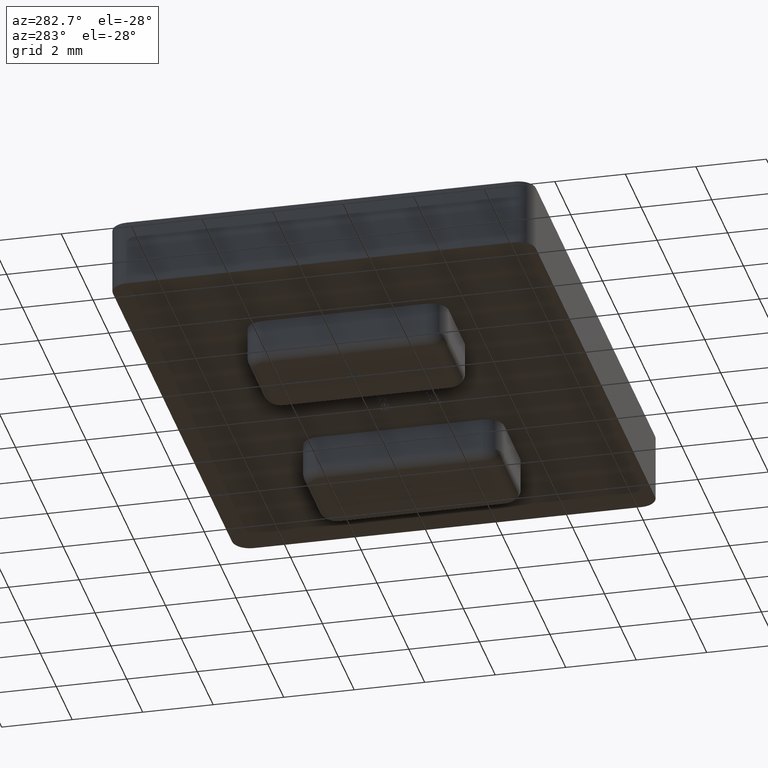
[diagram: clean part render]
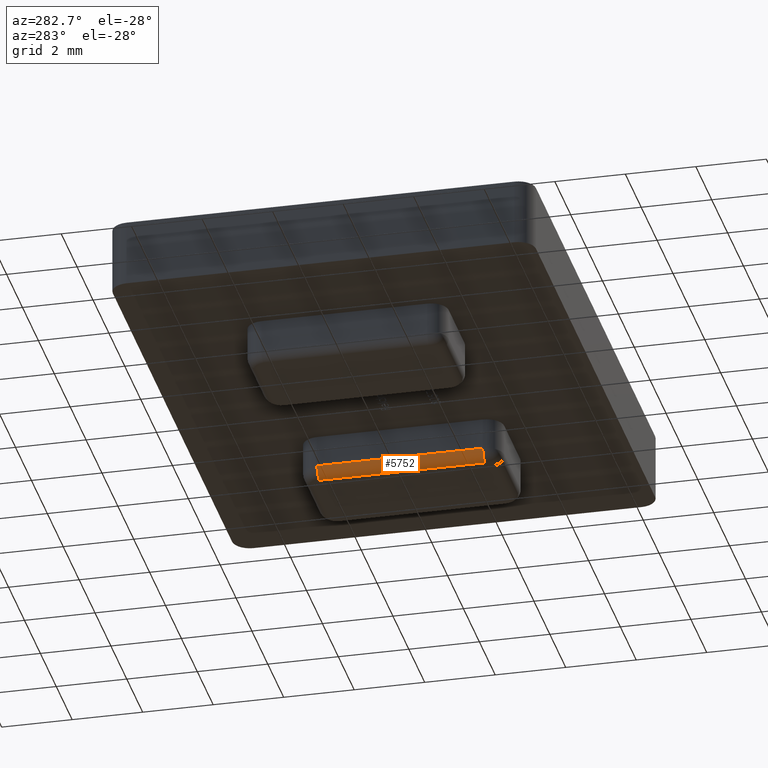
[diagram: same view with one face highlighted and labeled with its STEP entity id]
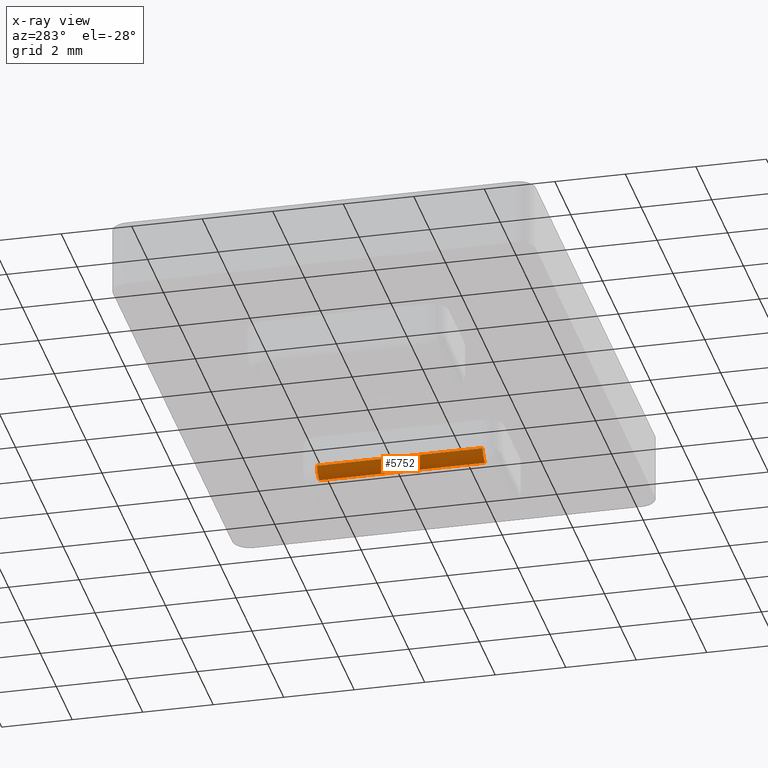
[diagram: x-ray of the same camera — body ghosted, the highlighted face saturated]
A machine part, auxiliary view. The second image highlights one B-rep face of the part: STEP entity #5752.
The next image is the same camera in x-ray: the body ghosted, the highlighted face saturated — about 0% of this face is hidden behind the body in this view.
In plain terms, the highlighted cylindrical surface (edge-blend (fillet) strip) has radius 0.3 mm, axis along (0, -1, 0).
Its self-contained STEP definition (entity closure, byte-faithful):
#313 = LINE ( 'NONE', #11211, #10744 ) ;
#335 = EDGE_CURVE ( 'NONE', #10522, #11056, #3748, .T. ) ;
#641 = DIRECTION ( 'NONE',  ( 0.0000000000000000000, 0.0000000000000000000, -1.000000000000000000 ) ) ;
#1175 = AXIS2_PLACEMENT_3D ( 'NONE', #3697, #12346, #4791 ) ;
#1887 = DIRECTION ( 'NONE',  ( -7.608436298143890100E-017, 1.000000000000000000, 0.0000000000000000000 ) ) ;
#2038 = AXIS2_PLACEMENT_3D ( 'NONE', #3809, #4851, #641 ) ;
#2398 = ORIENTED_EDGE ( 'NONE', *, *, #335, .F. ) ;
#3087 = VERTEX_POINT ( 'NONE', #7729 ) ;
#3697 = CARTESIAN_POINT ( 'NONE',  ( 2.299999999999999800, -2.349999999999999600, -0.9000000000000000200 ) ) ;
#3748 = LINE ( 'NONE', #3990, #4095 ) ;
#3809 = CARTESIAN_POINT ( 'NONE',  ( 2.299999999999999400, 2.350000000000000100, -0.9000000000000000200 ) ) ;
#3897 = CARTESIAN_POINT ( 'NONE',  ( 2.299999999999999800, 2.350000000000000100, -1.200000000000000000 ) ) ;
#3990 = CARTESIAN_POINT ( 'NONE',  ( 2.299999999999999800, 2.350000000000000100, -1.200000000000000000 ) ) ;
#4095 = VECTOR ( 'NONE', #1887, 1000.000000000000000 ) ;
#4301 = EDGE_CURVE ( 'NONE', #3087, #11056, #6073, .T. ) ;
#4791 = DIRECTION ( 'NONE',  ( 0.0000000000000000000, 0.0000000000000000000, -1.000000000000000000 ) ) ;
#4851 = DIRECTION ( 'NONE',  ( -0.0000000000000000000, -1.000000000000000000, -0.0000000000000000000 ) ) ;
#5184 = EDGE_CURVE ( 'NONE', #9767, #10522, #6570, .T. ) ;
#5395 = FACE_OUTER_BOUND ( 'NONE', #9519, .T. ) ;
#5752 = ADVANCED_FACE ( 'NONE', ( #5395 ), #11474, .T. ) ;
#6037 = DIRECTION ( 'NONE',  ( 1.000000000000000000, 7.608436298143892500E-017, 0.0000000000000000000 ) ) ;
#6073 = CIRCLE ( 'NONE', #2038, 0.2999999999999999300 ) ;
#6570 = CIRCLE ( 'NONE', #1175, 0.2999999999999999300 ) ;
#6742 = CARTESIAN_POINT ( 'NONE',  ( 2.299999999999999800, 1.749940348573094800E-016, -0.9000000000000000200 ) ) ;
#7017 = ORIENTED_EDGE ( 'NONE', *, *, #5184, .F. ) ;
#7252 = CARTESIAN_POINT ( 'NONE',  ( 2.000000000000000000, -2.349999999999999600, -0.9000000000000000200 ) ) ;
#7597 = CARTESIAN_POINT ( 'NONE',  ( 2.300000000000000300, -2.349999999999999600, -1.200000000000000000 ) ) ;
#7729 = CARTESIAN_POINT ( 'NONE',  ( 1.999999999999999600, 2.350000000000000100, -0.9000000000000000200 ) ) ;
#8154 = ORIENTED_EDGE ( 'NONE', *, *, #4301, .T. ) ;
#8633 = AXIS2_PLACEMENT_3D ( 'NONE', #6742, #10113, #6037 ) ;
#8927 = DIRECTION ( 'NONE',  ( 7.608436298143890100E-017, -1.000000000000000000, 0.0000000000000000000 ) ) ;
#9519 = EDGE_LOOP ( 'NONE', ( #8154, #2398, #7017, #12531 ) ) ;
#9767 = VERTEX_POINT ( 'NONE', #7252 ) ;
#10113 = DIRECTION ( 'NONE',  ( 7.608436298143890100E-017, -1.000000000000000000, 0.0000000000000000000 ) ) ;
#10522 = VERTEX_POINT ( 'NONE', #7597 ) ;
#10744 = VECTOR ( 'NONE', #8927, 1000.000000000000000 ) ;
#11056 = VERTEX_POINT ( 'NONE', #3897 ) ;
#11096 = EDGE_CURVE ( 'NONE', #3087, #9767, #313, .T. ) ;
#11211 = CARTESIAN_POINT ( 'NONE',  ( 2.000000000000000000, -2.349999999999999600, -0.9000000000000000200 ) ) ;
#11474 = CYLINDRICAL_SURFACE ( 'NONE', #8633, 0.2999999999999999300 ) ;
#12346 = DIRECTION ( 'NONE',  ( -0.0000000000000000000, -1.000000000000000000, -0.0000000000000000000 ) ) ;
#12531 = ORIENTED_EDGE ( 'NONE', *, *, #11096, .F. ) ;